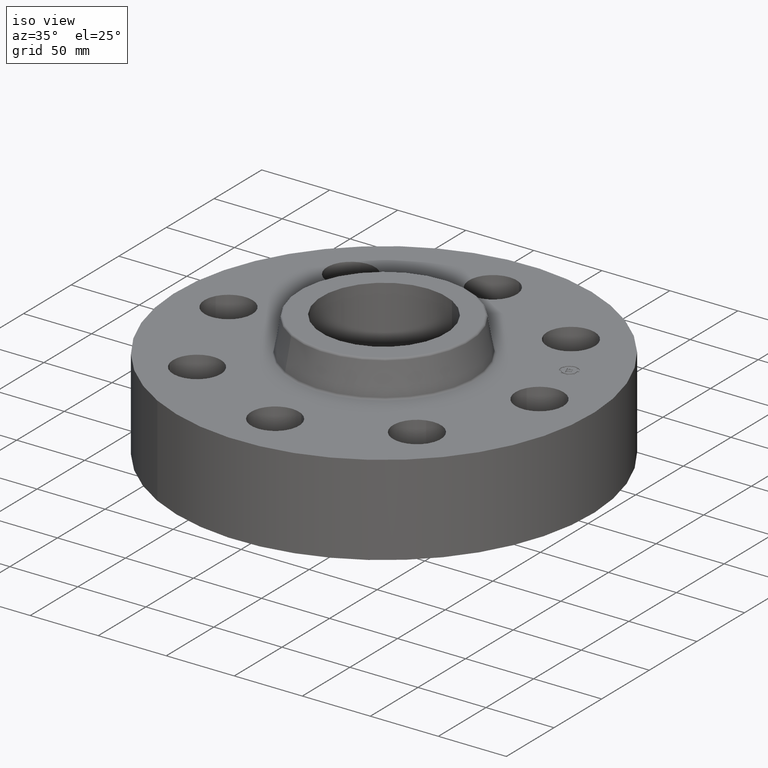
[diagram: clean part render]
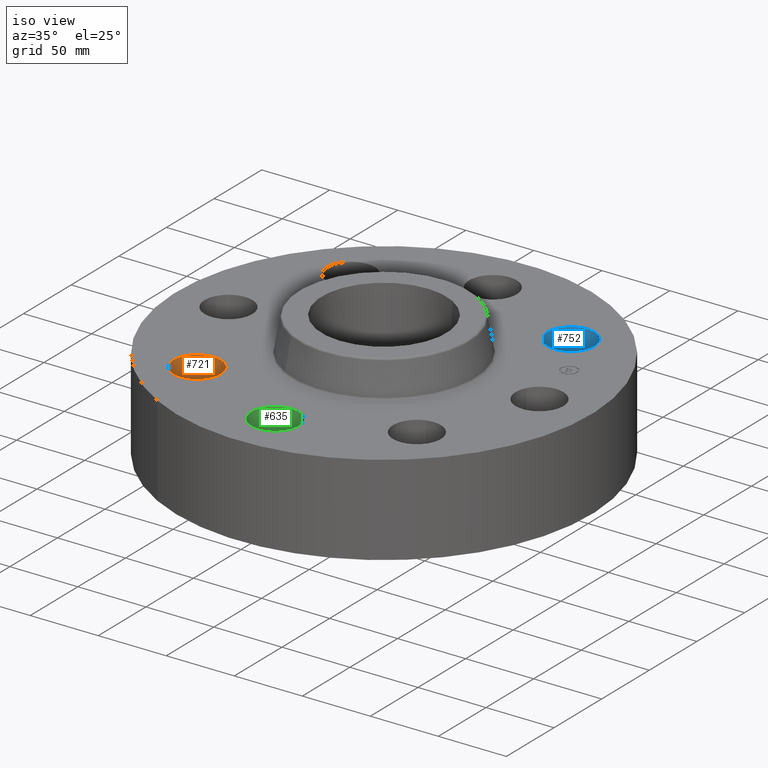
[diagram: same view with three faces highlighted in distinct colors, each labeled with its STEP entity id]
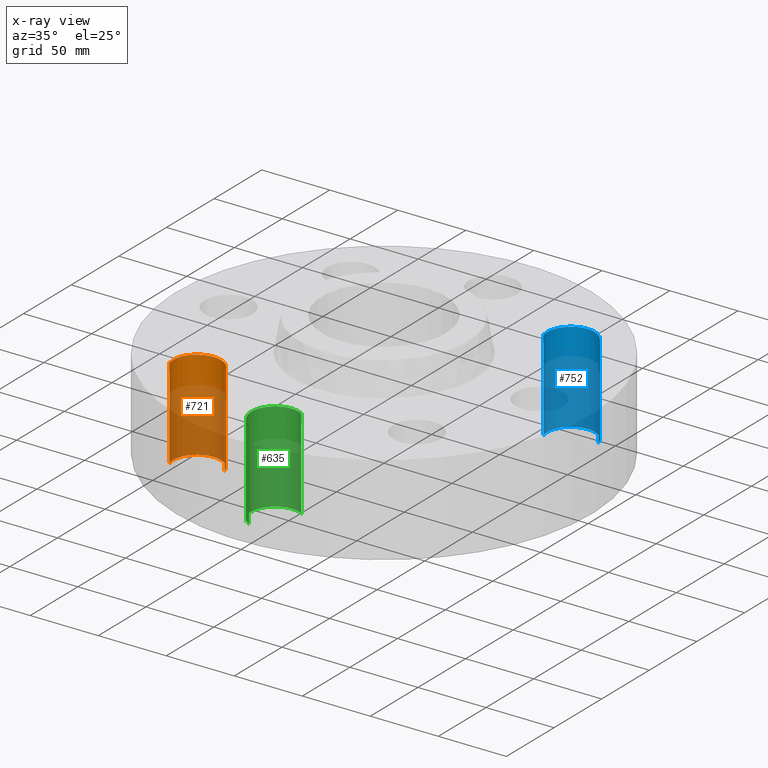
[diagram: x-ray of the same camera — body ghosted, the three highlighted faces saturated]
A machine part, iso view with three faces highlighted in distinct colors.
The next image is the same camera in x-ray (body ghosted, the three faces saturated) — at least one of them is partly hidden behind the body in this view.
Their STEP definitions:

[orange] entity #721 — the highlighted cylindrical surface (edge-blend (fillet) strip) has radius 17.526 mm, axis along (-0, 0, -1).
#470=AXIS2_PLACEMENT_3D('Circle Axis2P3D',#468,#469,$) ;
#682=AXIS2_PLACEMENT_3D('Cylinder Axis2P3D',#679,#680,#681) ;
#712=AXIS2_PLACEMENT_3D('Circle Axis2P3D',#710,#711,$) ;
#463=CARTESIAN_POINT('Vertex',(-2.51989127066,-2.98771823886,0.)) ;
#465=CARTESIAN_POINT('Vertex',(-3.84406976004,-3.37624279184,0.)) ;
#468=CARTESIAN_POINT('Axis2P3D Location',(-3.18198051535,-3.18198051535,0.)) ;
#679=CARTESIAN_POINT('Axis2P3D Location',(-3.18198051535,-3.18198051535,2.61606299214)) ;
#684=CARTESIAN_POINT('Line Origine',(-2.51989127066,-2.98771823886,1.31000000001)) ;
#688=CARTESIAN_POINT('Vertex',(-2.51989127066,-2.98771823886,2.62000000001)) ;
#691=CARTESIAN_POINT('Line Origine',(-3.84406976004,-3.37624279184,1.31000000001)) ;
#695=CARTESIAN_POINT('Vertex',(-3.84406976004,-3.37624279184,2.62000000001)) ;
#710=CARTESIAN_POINT('Axis2P3D Location',(-3.18198051535,-3.18198051535,2.62000000001)) ;
#469=DIRECTION('Axis2P3D Direction',(0.,0.,-0.0393700787402)) ;
#680=DIRECTION('Axis2P3D Direction',(-0.,0.,-0.0393700787402)) ;
#681=DIRECTION('Axis2P3D XDirection',(-0.0377775444876,-0.0110842335096,0.)) ;
#685=DIRECTION('Vector Direction',(0.,0.,-0.0393700787402)) ;
#692=DIRECTION('Vector Direction',(0.,0.,-0.0393700787402)) ;
#711=DIRECTION('Axis2P3D Direction',(-0.,0.,-0.0393700787402)) ;
#686=VECTOR('Line Direction',#685,0.0393700787402) ;
#693=VECTOR('Line Direction',#692,0.0393700787402) ;
#716=ORIENTED_EDGE('',*,*,#697,.F.) ;
#717=ORIENTED_EDGE('',*,*,#472,.T.) ;
#718=ORIENTED_EDGE('',*,*,#690,.T.) ;
#719=ORIENTED_EDGE('',*,*,#714,.F.) ;
#721=ADVANCED_FACE('PartBody',(#720),#683,.F.) ;
#471=CIRCLE('generated circle',#470,0.690000000003) ;
#713=CIRCLE('generated circle',#712,0.690000000003) ;
#683=CYLINDRICAL_SURFACE('generated cylinder',#682,0.690000000003) ;
#472=EDGE_CURVE('',#466,#464,#471,.T.) ;
#690=EDGE_CURVE('',#464,#689,#687,.F.) ;
#697=EDGE_CURVE('',#466,#696,#694,.F.) ;
#714=EDGE_CURVE('',#696,#689,#713,.T.) ;
#715=EDGE_LOOP('',(#716,#717,#718,#719)) ;
#720=FACE_OUTER_BOUND('',#715,.T.) ;
#687=LINE('Line',#684,#686) ;
#694=LINE('Line',#691,#693) ;
#464=VERTEX_POINT('',#463) ;
#466=VERTEX_POINT('',#465) ;
#689=VERTEX_POINT('',#688) ;
#696=VERTEX_POINT('',#695) ;

[blue] entity #752 — the highlighted cylindrical surface (edge-blend (fillet) strip) has radius 17.526 mm, axis along (0, 0, -1).
#533=AXIS2_PLACEMENT_3D('Circle Axis2P3D',#531,#532,$) ;
#725=AXIS2_PLACEMENT_3D('Cylinder Axis2P3D',#722,#723,#724) ;
#743=AXIS2_PLACEMENT_3D('Circle Axis2P3D',#741,#742,$) ;
#531=CARTESIAN_POINT('Axis2P3D Location',(3.18198051535,3.18198051535,0.)) ;
#535=CARTESIAN_POINT('Vertex',(2.51989127066,2.98771823886,0.)) ;
#537=CARTESIAN_POINT('Vertex',(3.84406976004,3.37624279184,0.)) ;
#722=CARTESIAN_POINT('Axis2P3D Location',(3.18198051535,3.18198051535,2.61606299214)) ;
#727=CARTESIAN_POINT('Line Origine',(2.51989127066,2.98771823886,1.31000000001)) ;
#731=CARTESIAN_POINT('Vertex',(2.51989127066,2.98771823886,2.62000000001)) ;
#734=CARTESIAN_POINT('Line Origine',(3.84406976004,3.37624279184,1.31000000001)) ;
#738=CARTESIAN_POINT('Vertex',(3.84406976004,3.37624279184,2.62000000001)) ;
#741=CARTESIAN_POINT('Axis2P3D Location',(3.18198051535,3.18198051535,2.62000000001)) ;
#532=DIRECTION('Axis2P3D Direction',(0.,0.,-0.0393700787402)) ;
#723=DIRECTION('Axis2P3D Direction',(0.,0.,-0.0393700787402)) ;
#724=DIRECTION('Axis2P3D XDirection',(0.0377775444876,0.0110842335096,0.)) ;
#728=DIRECTION('Vector Direction',(0.,0.,-0.0393700787402)) ;
#735=DIRECTION('Vector Direction',(0.,0.,-0.0393700787402)) ;
#742=DIRECTION('Axis2P3D Direction',(0.,0.,-0.0393700787402)) ;
#729=VECTOR('Line Direction',#728,0.0393700787402) ;
#736=VECTOR('Line Direction',#735,0.0393700787402) ;
#747=ORIENTED_EDGE('',*,*,#733,.F.) ;
#748=ORIENTED_EDGE('',*,*,#539,.T.) ;
#749=ORIENTED_EDGE('',*,*,#740,.T.) ;
#750=ORIENTED_EDGE('',*,*,#745,.F.) ;
#752=ADVANCED_FACE('PartBody',(#751),#726,.F.) ;
#534=CIRCLE('generated circle',#533,0.690000000003) ;
#744=CIRCLE('generated circle',#743,0.690000000003) ;
#726=CYLINDRICAL_SURFACE('generated cylinder',#725,0.690000000003) ;
#539=EDGE_CURVE('',#536,#538,#534,.T.) ;
#733=EDGE_CURVE('',#536,#732,#730,.F.) ;
#740=EDGE_CURVE('',#538,#739,#737,.F.) ;
#745=EDGE_CURVE('',#732,#739,#744,.T.) ;
#746=EDGE_LOOP('',(#747,#748,#749,#750)) ;
#751=FACE_OUTER_BOUND('',#746,.T.) ;
#730=LINE('Line',#727,#729) ;
#737=LINE('Line',#734,#736) ;
#536=VERTEX_POINT('',#535) ;
#538=VERTEX_POINT('',#537) ;
#732=VERTEX_POINT('',#731) ;
#739=VERTEX_POINT('',#738) ;

[green] entity #635 — the highlighted cylindrical surface (edge-blend (fillet) strip) has radius 17.526 mm, axis along (0, -0, -1).
#452=AXIS2_PLACEMENT_3D('Circle Axis2P3D',#450,#451,$) ;
#596=AXIS2_PLACEMENT_3D('Cylinder Axis2P3D',#593,#594,#595) ;
#626=AXIS2_PLACEMENT_3D('Circle Axis2P3D',#624,#625,$) ;
#445=CARTESIAN_POINT('Vertex',(0.330803621638,-3.89446803231,0.)) ;
#447=CARTESIAN_POINT('Vertex',(-0.330803621638,-5.10553196772,0.)) ;
#450=CARTESIAN_POINT('Axis2P3D Location',(-1.18890024684E-015,-4.50000000002,0.)) ;
#593=CARTESIAN_POINT('Axis2P3D Location',(-2.83936939293E-016,-4.50000000002,2.61606299214)) ;
#598=CARTESIAN_POINT('Line Origine',(0.330803621638,-3.89446803231,1.31000000001)) ;
#602=CARTESIAN_POINT('Vertex',(0.330803621638,-3.89446803231,2.62000000001)) ;
#605=CARTESIAN_POINT('Line Origine',(-0.330803621638,-5.10553196772,1.31000000001)) ;
#609=CARTESIAN_POINT('Vertex',(-0.330803621638,-5.10553196772,2.62000000001)) ;
#624=CARTESIAN_POINT('Axis2P3D Location',(-2.83936939293E-016,-4.50000000002,2.62000000001)) ;
#451=DIRECTION('Axis2P3D Direction',(0.,0.,-0.0393700787402)) ;
#594=DIRECTION('Axis2P3D Direction',(0.,-0.,-0.0393700787402)) ;
#595=DIRECTION('Axis2P3D XDirection',(-0.0188750212049,-0.0345504945626,0.)) ;
#599=DIRECTION('Vector Direction',(0.,0.,-0.0393700787402)) ;
#606=DIRECTION('Vector Direction',(0.,0.,-0.0393700787402)) ;
#625=DIRECTION('Axis2P3D Direction',(0.,-0.,-0.0393700787402)) ;
#600=VECTOR('Line Direction',#599,0.0393700787402) ;
#607=VECTOR('Line Direction',#606,0.0393700787402) ;
#630=ORIENTED_EDGE('',*,*,#611,.F.) ;
#631=ORIENTED_EDGE('',*,*,#454,.T.) ;
#632=ORIENTED_EDGE('',*,*,#604,.T.) ;
#633=ORIENTED_EDGE('',*,*,#628,.F.) ;
#635=ADVANCED_FACE('PartBody',(#634),#597,.F.) ;
#453=CIRCLE('generated circle',#452,0.690000000003) ;
#627=CIRCLE('generated circle',#626,0.690000000003) ;
#597=CYLINDRICAL_SURFACE('generated cylinder',#596,0.690000000003) ;
#454=EDGE_CURVE('',#448,#446,#453,.T.) ;
#604=EDGE_CURVE('',#446,#603,#601,.F.) ;
#611=EDGE_CURVE('',#448,#610,#608,.F.) ;
#628=EDGE_CURVE('',#610,#603,#627,.T.) ;
#629=EDGE_LOOP('',(#630,#631,#632,#633)) ;
#634=FACE_OUTER_BOUND('',#629,.T.) ;
#601=LINE('Line',#598,#600) ;
#608=LINE('Line',#605,#607) ;
#446=VERTEX_POINT('',#445) ;
#448=VERTEX_POINT('',#447) ;
#603=VERTEX_POINT('',#602) ;
#610=VERTEX_POINT('',#609) ;